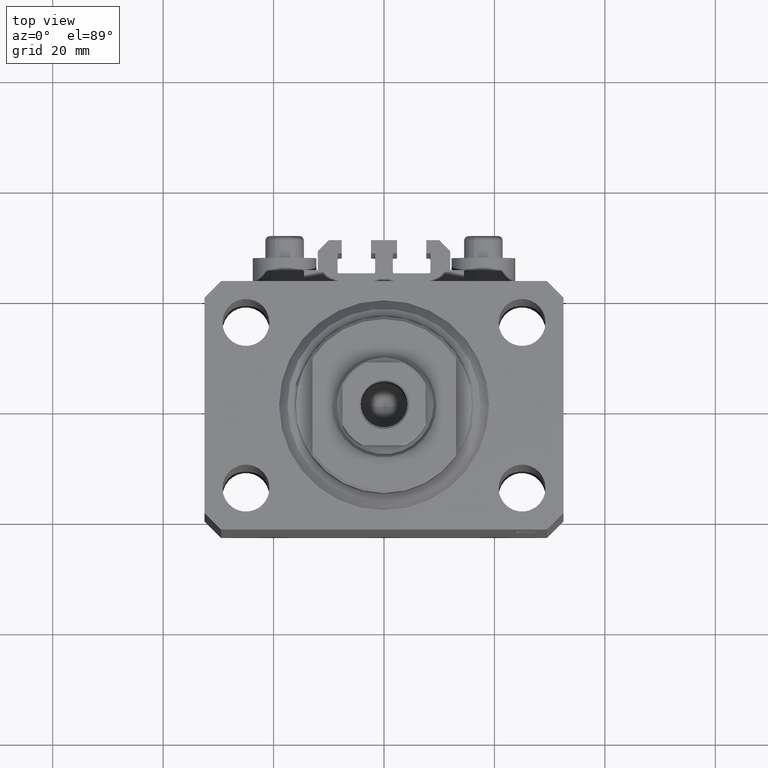
[diagram: clean part render]
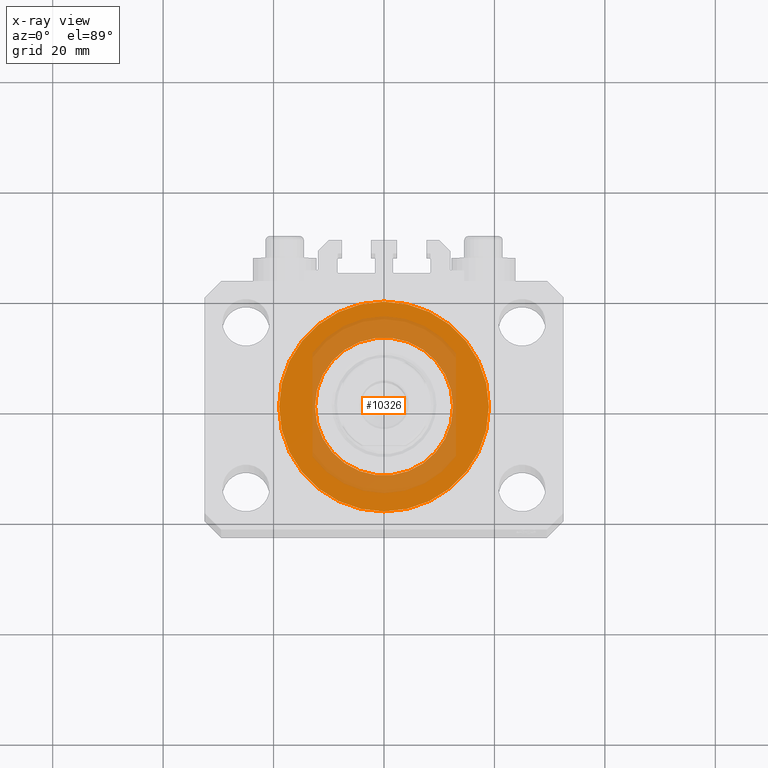
[diagram: x-ray — body ghosted, one internal face saturated and labeled with its STEP entity id]
A machine part, top view, then the same camera in x-ray: the body is ghosted and one INTERNAL B-rep face — a face not visible from any outside direction — is saturated and labeled: STEP entity #10326.
In plain terms, the highlighted planar face has unit normal (0, 0, 1).
Its self-contained STEP definition (entity closure, byte-faithful):
#2847 = CARTESIAN_POINT ( 'NONE',  ( 0.000000000000000000, 0.000000000000000000, -13.99999999999999822 ) ) ;
#3951 = CARTESIAN_POINT ( 'NONE',  ( 0.000000000000000000, 0.000000000000000000, -14.00000000000000000 ) ) ;
#8233 = CIRCLE ( 'NONE', #35050, 12.50000000000000000 ) ;
#8922 = DIRECTION ( 'NONE',  ( 0.000000000000000000, 0.000000000000000000, 1.000000000000000000 ) ) ;
#8989 = PLANE ( 'NONE',  #41906 ) ;
#9224 = CIRCLE ( 'NONE', #10758, 19.00000000000000000 ) ;
#9668 = EDGE_CURVE ( 'NONE', #17088, #27075, #31898, .T. ) ;
#10326 = ADVANCED_FACE ( 'NONE', ( #23406, #38965 ), #8989, .T. ) ;
#10437 = CARTESIAN_POINT ( 'NONE',  ( 0.000000000000000000, 0.000000000000000000, -14.00000000000000000 ) ) ;
#10758 = AXIS2_PLACEMENT_3D ( 'NONE', #3951, #17871, #29600 ) ;
#11458 = CARTESIAN_POINT ( 'NONE',  ( -12.50000000000000000, 1.530808498934191521E-15, -13.99999999999999822 ) ) ;
#11547 = ORIENTED_EDGE ( 'NONE', *, *, #32037, .T. ) ;
#13560 = DIRECTION ( 'NONE',  ( 0.000000000000000000, 0.000000000000000000, 1.000000000000000000 ) ) ;
#13581 = VERTEX_POINT ( 'NONE', #40158 ) ;
#16925 = ORIENTED_EDGE ( 'NONE', *, *, #9668, .F. ) ;
#17088 = VERTEX_POINT ( 'NONE', #39056 ) ;
#17238 = DIRECTION ( 'NONE',  ( 0.000000000000000000, 0.000000000000000000, 1.000000000000000000 ) ) ;
#17871 = DIRECTION ( 'NONE',  ( 0.000000000000000000, 0.000000000000000000, 1.000000000000000000 ) ) ;
#18429 = AXIS2_PLACEMENT_3D ( 'NONE', #10437, #13560, #28228 ) ;
#18489 = CARTESIAN_POINT ( 'NONE',  ( 19.00000000000000000, 0.000000000000000000, -14.00000000000000000 ) ) ;
#19505 = DIRECTION ( 'NONE',  ( 1.000000000000000000, 0.000000000000000000, 0.000000000000000000 ) ) ;
#19734 = CARTESIAN_POINT ( 'NONE',  ( 0.000000000000000000, 0.000000000000000000, -13.99999999999999822 ) ) ;
#19927 = EDGE_CURVE ( 'NONE', #13581, #39145, #23774, .T. ) ;
#20757 = CARTESIAN_POINT ( 'NONE',  ( 0.000000000000000000, 0.000000000000000000, -14.00000000000000000 ) ) ;
#21633 = EDGE_LOOP ( 'NONE', ( #16925, #34928 ) ) ;
#22368 = EDGE_LOOP ( 'NONE', ( #11547, #40097 ) ) ;
#23406 = FACE_BOUND ( 'NONE', #21633, .T. ) ;
#23774 = CIRCLE ( 'NONE', #18429, 19.00000000000000000 ) ;
#27075 = VERTEX_POINT ( 'NONE', #11458 ) ;
#28228 = DIRECTION ( 'NONE',  ( 1.000000000000000000, 0.000000000000000000, 0.000000000000000000 ) ) ;
#29600 = DIRECTION ( 'NONE',  ( 1.000000000000000000, 0.000000000000000000, 0.000000000000000000 ) ) ;
#31898 = CIRCLE ( 'NONE', #41868, 12.50000000000000000 ) ;
#32037 = EDGE_CURVE ( 'NONE', #39145, #13581, #9224, .T. ) ;
#34421 = DIRECTION ( 'NONE',  ( 1.000000000000000000, 0.000000000000000000, -0.000000000000000000 ) ) ;
#34928 = ORIENTED_EDGE ( 'NONE', *, *, #39313, .F. ) ;
#35050 = AXIS2_PLACEMENT_3D ( 'NONE', #2847, #17238, #39068 ) ;
#38020 = DIRECTION ( 'NONE',  ( 0.000000000000000000, 0.000000000000000000, 1.000000000000000000 ) ) ;
#38965 = FACE_OUTER_BOUND ( 'NONE', #22368, .T. ) ;
#39056 = CARTESIAN_POINT ( 'NONE',  ( 12.50000000000000000, 0.000000000000000000, -13.99999999999999822 ) ) ;
#39068 = DIRECTION ( 'NONE',  ( 1.000000000000000000, 0.000000000000000000, 0.000000000000000000 ) ) ;
#39145 = VERTEX_POINT ( 'NONE', #18489 ) ;
#39313 = EDGE_CURVE ( 'NONE', #27075, #17088, #8233, .T. ) ;
#40097 = ORIENTED_EDGE ( 'NONE', *, *, #19927, .T. ) ;
#40158 = CARTESIAN_POINT ( 'NONE',  ( -19.00000000000000000, 2.326828918379970970E-15, -14.00000000000000000 ) ) ;
#41868 = AXIS2_PLACEMENT_3D ( 'NONE', #19734, #8922, #19505 ) ;
#41906 = AXIS2_PLACEMENT_3D ( 'NONE', #20757, #38020, #34421 ) ;